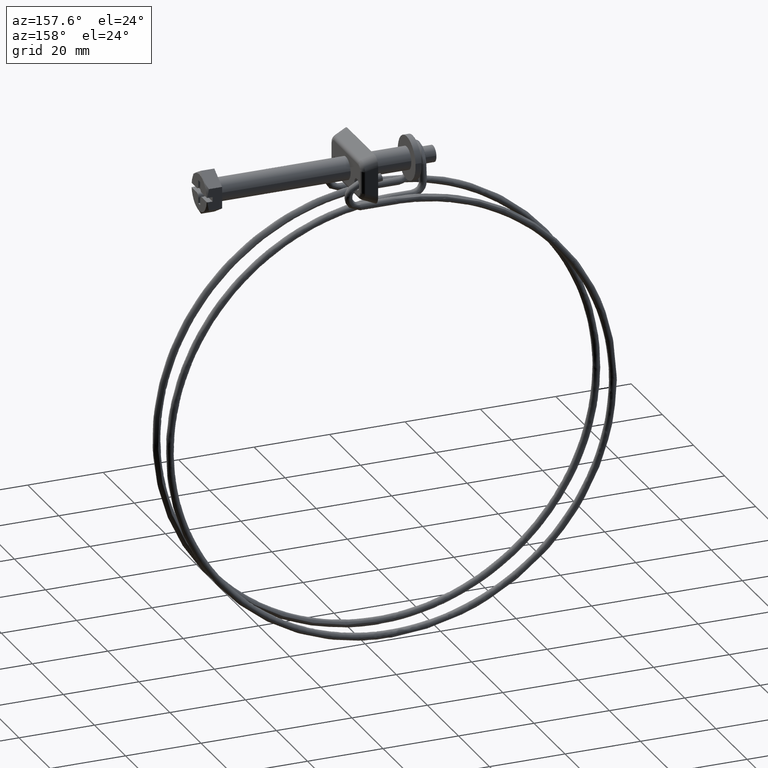
[diagram: clean part render]
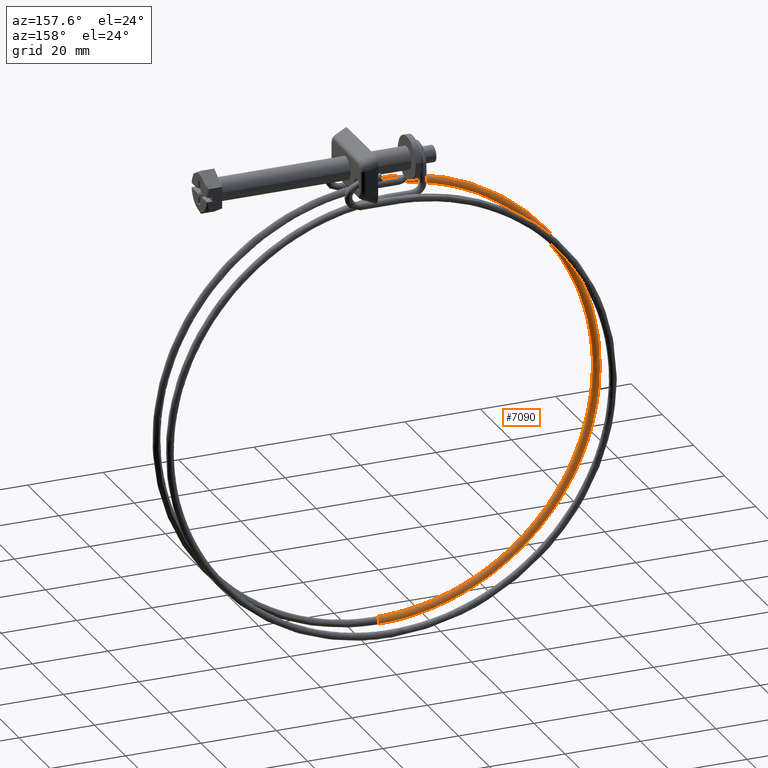
[diagram: same view with one face highlighted and labeled with its STEP entity id]
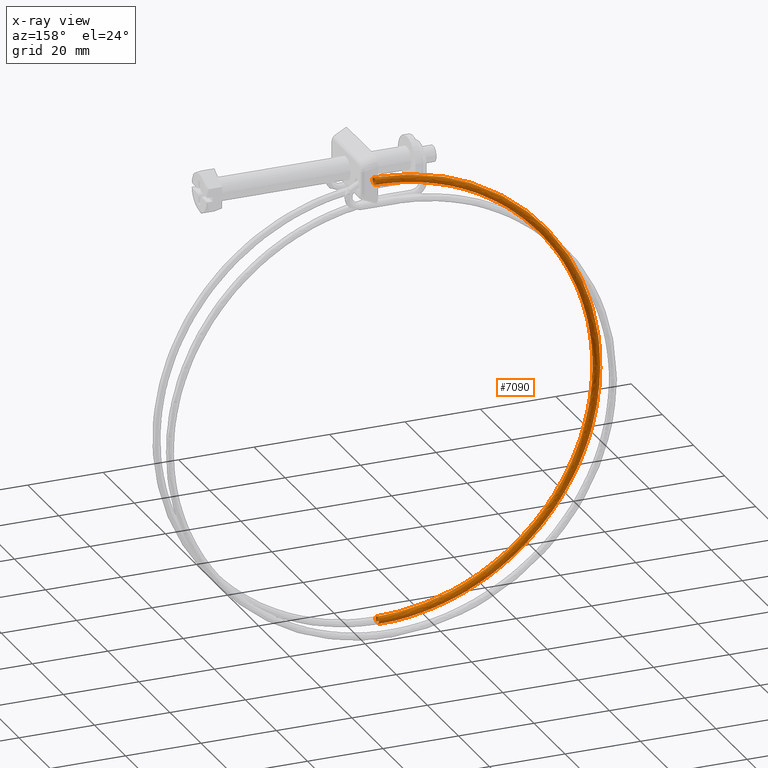
[diagram: x-ray of the same camera — body ghosted, the highlighted face saturated]
A machine part, auxiliary view. The second image highlights one B-rep face of the part: STEP entity #7090.
The next image is the same camera in x-ray: the body ghosted, the highlighted face saturated — about 0% of this face is hidden behind the body in this view.
In plain terms, the highlighted face is a freeform B-spline surface patch.
Its self-contained STEP definition (entity closure, byte-faithful):
#4573=CARTESIAN_POINT('',(-44.949999998836027,-5.311039393148999,-7.894169453608496));
#4574=VERTEX_POINT('',#4573);
#4575=CARTESIAN_POINT('',(-44.949999999999960,-5.974420661129821,-6.908508554029151));
#4576=VERTEX_POINT('',#4575);
#4577=CARTESIAN_POINT('',(-44.949999998836027,-5.311039393148999,-7.894169453608496));
#4578=CARTESIAN_POINT('',(-44.949999998856612,-5.309808026557454,-7.868018574566658));
#4579=CARTESIAN_POINT('',(-44.949999998877793,-5.309627232391755,-7.841813824010115));
#4580=CARTESIAN_POINT('',(-44.949999999117153,-5.319498217223199,-7.553898283380754));
#4581=CARTESIAN_POINT('',(-44.949999999389348,-5.436120801330201,-7.297458111933486));
#4582=CARTESIAN_POINT('',(-44.949999999769346,-5.727024221261706,-7.025703904461276));
#4583=CARTESIAN_POINT('',(-44.949999999892547,-5.846170316292789,-6.954327632220243));
#4584=CARTESIAN_POINT('',(-44.949999999999960,-5.974420661129821,-6.908508554029151));
#4585=B_SPLINE_CURVE_WITH_KNOTS('',3,(#4577,#4578,#4579,#4580,#4581,#4582,#4583,#4584),.UNSPECIFIED.,.F.,.U.,(4,2,2,4),(0.737494791658561,0.750000000000000,0.875000000000000,0.940036109681440),.UNSPECIFIED.);
#4586=EDGE_CURVE('',#4574,#4576,#4585,.T.);
#4642=CARTESIAN_POINT('',(-44.949999999999967,-6.344350741984328,-6.850591095391717));
#4643=VERTEX_POINT('',#4642);
#4644=CARTESIAN_POINT('',(-44.949999999999960,-5.974420661129821,-6.908508554029151));
#4645=CARTESIAN_POINT('',(-44.949999999999967,-6.092731554548301,-6.866454072036305));
#4646=CARTESIAN_POINT('',(-44.949999999999967,-6.218782661652304,-6.846125678241154));
#4647=CARTESIAN_POINT('',(-44.949999999999967,-6.344350741984328,-6.850591095391717));
#4648=B_SPLINE_CURVE_WITH_KNOTS('',3,(#4644,#4645,#4646,#4647),.UNSPECIFIED.,.F.,.U.,(4,4),(0.940036109681440,1.0),.UNSPECIFIED.);
#4649=EDGE_CURVE('',#4576,#4643,#4648,.T.);
#4651=CARTESIAN_POINT('',(-44.949999999999967,-7.062033864607670,-7.190907952424980));
#4652=VERTEX_POINT('',#4651);
#4662=CARTESIAN_POINT('',(-44.949999999999953,-6.275653068925592,-8.849410904608254));
#4663=VERTEX_POINT('',#4662);
#4664=CARTESIAN_POINT('',(-44.949999999999967,-7.062033864607670,-7.190907952424980));
#4665=CARTESIAN_POINT('',(-44.949999999999960,-7.227361706803780,-7.380065930074665));
#4666=CARTESIAN_POINT('',(-44.949999999999960,-7.318044595389659,-7.633171280532898));
#4667=CARTESIAN_POINT('',(-44.949999999999960,-7.300419305688212,-8.145994737716217));
#4668=CARTESIAN_POINT('',(-44.949999999999953,-7.183772675668191,-8.402326592900588));
#4669=CARTESIAN_POINT('',(-44.949999999999960,-6.801033586237160,-8.759631039037972));
#4670=CARTESIAN_POINT('',(-44.949999999999953,-6.537297970112442,-8.858403408983254));
#4671=CARTESIAN_POINT('',(-44.949999999999953,-6.275653068925595,-8.849410904608254));
#4672=B_SPLINE_CURVE_WITH_KNOTS('',3,(#4664,#4665,#4666,#4667,#4668,#4669,#4670,#4671),.UNSPECIFIED.,.F.,.U.,(4,2,2,4),(0.130000262351234,0.249999999999999,0.374999999999999,0.500000000000000),.UNSPECIFIED.);
#4673=EDGE_CURVE('',#4652,#4663,#4672,.T.);
#4675=CARTESIAN_POINT('',(-44.949999999999953,-6.275653068925592,-8.849410904608254));
#4676=CARTESIAN_POINT('',(-44.949999999835129,-6.013999465536163,-8.840418809517198));
#4677=CARTESIAN_POINT('',(-44.949999999608593,-5.757655649785072,-8.723772742029238));
#4678=CARTESIAN_POINT('',(-44.949999999182452,-5.418201369986546,-8.360179639029891));
#4679=CARTESIAN_POINT('',(-44.949999998984651,-5.322108059632653,-8.129344423212601));
#4680=CARTESIAN_POINT('',(-44.949999998836027,-5.311039393148999,-7.894169453608496));
#4681=B_SPLINE_CURVE_WITH_KNOTS('',3,(#4675,#4676,#4677,#4678,#4679,#4680),.UNSPECIFIED.,.F.,.U.,(4,2,4),(0.500000000000000,0.625000000000000,0.737494791658561),.UNSPECIFIED.);
#4682=EDGE_CURVE('',#4663,#4574,#4681,.T.);
#6080=CARTESIAN_POINT('',(-44.949999999991313,-3.300325003237878,-124.824871093381600));
#6081=VERTEX_POINT('',#6080);
#6082=CARTESIAN_POINT('',(-44.949999999965030,-4.274872093360560,-125.849677996761500));
#6083=VERTEX_POINT('',#6082);
#6084=CARTESIAN_POINT('',(-44.949999999991313,-3.300325003237878,-124.824871093381600));
#6085=CARTESIAN_POINT('',(-44.949999999991213,-3.300105234537513,-124.833244440008100));
#6086=CARTESIAN_POINT('',(-44.949999999991093,-3.299994866466340,-124.841621846642500));
#6087=CARTESIAN_POINT('',(-44.949999999987462,-3.299995836084642,-125.111801283060200));
#6088=CARTESIAN_POINT('',(-44.949999999982573,-3.407770234044966,-125.371989925768600));
#6089=CARTESIAN_POINT('',(-44.949999999973002,-3.772088163064204,-125.736307992313400));
#6090=CARTESIAN_POINT('',(-44.949999999968362,-4.021623570390203,-125.843029356829600));
#6091=CARTESIAN_POINT('',(-44.949999999965030,-4.274872093360560,-125.849677996761500));
#6092=B_SPLINE_CURVE_WITH_KNOTS('',3,(#6084,#6085,#6086,#6087,#6088,#6089,#6090,#6091),.UNSPECIFIED.,.F.,.U.,(4,2,2,4),(0.745999309435994,0.750000000000000,0.875000000000000,0.995999309432632),.UNSPECIFIED.);
#6093=EDGE_CURVE('',#6081,#6083,#6092,.T.);
#6183=CARTESIAN_POINT('',(-44.950000000000003,-4.300002000000007,-123.850001000000010));
#6184=VERTEX_POINT('',#6183);
#6185=CARTESIAN_POINT('',(-44.950000000000003,-4.300002000000007,-123.850001000000010));
#6186=CARTESIAN_POINT('',(-44.949999999998830,-4.038201646737111,-123.850000974656790));
#6187=CARTESIAN_POINT('',(-44.949999999997203,-3.778013028668510,-123.957774035685500));
#6188=CARTESIAN_POINT('',(-44.949999999993999,-3.413694996723188,-124.322089344256700));
#6189=CARTESIAN_POINT('',(-44.949999999992443,-3.306973642412659,-124.571623483095810));
#6190=CARTESIAN_POINT('',(-44.949999999991313,-3.300325003237878,-124.824871093381600));
#6191=B_SPLINE_CURVE_WITH_KNOTS('',3,(#6185,#6186,#6187,#6188,#6189,#6190),.UNSPECIFIED.,.F.,.U.,(4,2,4),(0.500000000000000,0.625000000000000,0.745999309435994),.UNSPECIFIED.);
#6192=EDGE_CURVE('',#6184,#6081,#6191,.T.);
#6194=CARTESIAN_POINT('',(-44.950000000000003,-5.028951109210329,-125.534536542634500));
#6195=VERTEX_POINT('',#6194);
#6196=CARTESIAN_POINT('',(-44.950000000000003,-5.028951109210329,-125.534536542634500));
#6197=CARTESIAN_POINT('',(-44.950000000000003,-5.200678748661203,-125.351169005261200));
#6198=CARTESIAN_POINT('',(-44.950000000000003,-5.300002000000000,-125.101327862819900));
#6199=CARTESIAN_POINT('',(-44.950000000000003,-5.300002000000000,-124.588201612200810));
#6200=CARTESIAN_POINT('',(-44.950000000000003,-5.192228903609820,-124.328014341236600));
#6201=CARTESIAN_POINT('',(-44.950000000000003,-4.821988658763289,-123.957774096390000));
#6202=CARTESIAN_POINT('',(-44.950000000000003,-4.561801387799160,-123.850001000000010));
#6203=CARTESIAN_POINT('',(-44.950000000000003,-4.300002000000007,-123.850001000000010));
#6204=B_SPLINE_CURVE_WITH_KNOTS('',3,(#6196,#6197,#6198,#6199,#6200,#6201,#6202,#6203),.UNSPECIFIED.,.F.,.U.,(4,2,2,4),(0.130000262351240,0.250000000000000,0.375000000000000,0.500000000000000),.UNSPECIFIED.);
#6205=EDGE_CURVE('',#6195,#6184,#6204,.T.);
#6207=CARTESIAN_POINT('',(-44.950000000000003,-4.300002000000007,-125.850001000000010));
#6208=VERTEX_POINT('',#6207);
#6218=CARTESIAN_POINT('',(-44.949999999965030,-4.274872093360560,-125.849677996761500));
#6219=CARTESIAN_POINT('',(-44.949999999976683,-4.283245472034839,-125.849895397774500));
#6220=CARTESIAN_POINT('',(-44.949999999988343,-4.291622910327826,-125.850003397795700));
#6221=CARTESIAN_POINT('',(-44.950000000000003,-4.300002000000007,-125.850001000000010));
#6222=B_SPLINE_CURVE_WITH_KNOTS('',3,(#6218,#6219,#6220,#6221),.UNSPECIFIED.,.F.,.U.,(4,4),(0.995999309432632,1.0),.UNSPECIFIED.);
#6223=EDGE_CURVE('',#6083,#6208,#6222,.T.);
#6749=CARTESIAN_POINT('',(-44.950000000000003,-7.062032780256199,-7.190906711776395));
#6750=CARTESIAN_POINT('',(-44.950000000000003,-7.227361310289744,-7.380064823363663));
#6751=CARTESIAN_POINT('',(-44.950000000000003,-7.318044614263363,-7.633170731389734));
#6752=CARTESIAN_POINT('',(-44.950000000000003,-7.300419305688460,-8.145994737715959));
#6753=CARTESIAN_POINT('',(-44.950000000000003,-7.183772675668480,-8.402326592900369));
#6754=CARTESIAN_POINT('',(-44.950000000000003,-6.801033586237520,-8.759631039037821));
#6755=CARTESIAN_POINT('',(-44.950000000000003,-6.537297970112820,-8.858403408983149));
#6756=CARTESIAN_POINT('',(-44.950000000000003,-6.014008167739120,-8.840418400233249));
#6757=CARTESIAN_POINT('',(-44.950000000000003,-5.757676312554731,-8.723771770213270));
#6758=CARTESIAN_POINT('',(-44.950000000000003,-5.400371866417270,-8.341032680782321));
#6759=CARTESIAN_POINT('',(-44.950000000000003,-5.301599496471940,-8.077297064657611));
#6760=CARTESIAN_POINT('',(-44.950000000000003,-5.319584505221840,-7.554007262283900));
#6761=CARTESIAN_POINT('',(-44.950000000000003,-5.436231135241810,-7.297675407099520));
#6762=CARTESIAN_POINT('',(-44.950000000000003,-5.818970224672780,-6.940370960962061));
#6763=CARTESIAN_POINT('',(-44.950000000000003,-6.082705840797480,-6.841598591016740));
#6764=CARTESIAN_POINT('',(-44.950000000000003,-6.344350741984330,-6.850591095391685));
#6765=CARTESIAN_POINT('',(-52.696956091880402,-7.062330169033658,-7.190940007512155));
#6766=CARTESIAN_POINT('',(-52.672562831501352,-7.227658235243203,-7.380097962170632));
#6767=CARTESIAN_POINT('',(-52.639629453682069,-7.318340909772926,-7.633203658689141));
#6768=CARTESIAN_POINT('',(-52.572449441247102,-7.300714308843801,-8.146027234435520));
#6769=CARTESIAN_POINT('',(-52.538627389470903,-7.184067023800960,-8.402358873250710));
#6770=CARTESIAN_POINT('',(-52.490987228668203,-6.801327006729120,-8.759663015311480));
#6771=CARTESIAN_POINT('',(-52.477462479822996,-6.537591126188651,-8.858435299012928));
#6772=CARTESIAN_POINT('',(-52.478640151355101,-6.014301346858290,-8.840450297784461));
#6773=CARTESIAN_POINT('',(-52.493335319917897,-5.757969778904711,-8.723803761471109));
#6774=CARTESIAN_POINT('',(-52.542640959820503,-5.400666292433380,-8.341064986797329));
#6775=CARTESIAN_POINT('',(-52.576947815352199,-5.301894586539370,-8.077329590131290));
#6776=CARTESIAN_POINT('',(-52.645498848449101,-5.319880913231250,-7.554040227210640));
#6777=CARTESIAN_POINT('',(-52.679320900224504,-5.436528189145069,-7.297708589404430));
#6778=CARTESIAN_POINT('',(-52.726961061105200,-5.819268183504330,-6.940404449739440));
#6779=CARTESIAN_POINT('',(-52.740485809909899,-6.083004055505990,-6.841632166979840));
#6780=CARTESIAN_POINT('',(-52.739896974123852,-6.344648945564675,-6.850624667631300));
#6781=CARTESIAN_POINT('',(-60.438294215747902,-7.035574309432156,-8.731031170841765));
#6782=CARTESIAN_POINT('',(-60.389525535378432,-7.200986153173729,-8.915339678552581));
#6783=CARTESIAN_POINT('',(-60.323682865817467,-7.291781939119458,-9.161898128899804));
#6784=CARTESIAN_POINT('',(-60.189371973891497,-7.274386079814270,-9.661366132621289));
#6785=CARTESIAN_POINT('',(-60.121752606444701,-7.157854966970340,-9.910973853661108));
#6786=CARTESIAN_POINT('',(-60.026507127085601,-6.775278589627910,-10.258806998890879));
#6787=CARTESIAN_POINT('',(-59.999467520848697,-6.511589166470620,-10.354890524753401));
#6788=CARTESIAN_POINT('',(-60.001822002781402,-5.988295341833500,-10.337139647898100));
#6789=CARTESIAN_POINT('',(-60.031201592325800,-5.731913296181559,-10.223414552053541));
#6790=CARTESIAN_POINT('',(-60.129776811903703,-5.374440449609250,-9.850477876120070));
#6791=CARTESIAN_POINT('',(-60.198365432125797,-5.275550906674290,-9.593562777528410));
#6792=CARTESIAN_POINT('',(-60.335417362662497,-5.293301783509680,-9.083901549347420));
#6793=CARTESIAN_POINT('',(-60.403036730109299,-5.409832896353610,-8.834293828201380));
#6794=CARTESIAN_POINT('',(-60.498282209362202,-5.792409273696040,-8.486460683077830));
#6795=CARTESIAN_POINT('',(-60.525321815652198,-6.056098696853330,-8.390377157215319));
#6796=CARTESIAN_POINT('',(-60.524144574712437,-6.317745609175210,-8.399252595642979));
#6797=CARTESIAN_POINT('',(-74.750322938896232,-6.933729380704432,-14.659318119488480));
#6798=CARTESIAN_POINT('',(-74.656492152731573,-7.099461888065193,-14.824961132657981));
#6799=CARTESIAN_POINT('',(-74.529811065883678,-7.190690602433701,-15.046319270703030));
#6800=CARTESIAN_POINT('',(-74.271397336560199,-7.174177863545441,-15.494381757625700));
#6801=CARTESIAN_POINT('',(-74.141297888526807,-7.058091361277310,-15.718109161263850));
#6802=CARTESIAN_POINT('',(-73.958045888842292,-6.676141241613120,-16.029488501332398));
#6803=CARTESIAN_POINT('',(-73.906021772403193,-6.412629609150770,-16.115223015882052));
#6804=CARTESIAN_POINT('',(-73.910551787958397,-5.889320303329010,-16.098373282335899));
#6805=CARTESIAN_POINT('',(-73.967078024994109,-5.632745081138300,-15.995892792137500));
#6806=CARTESIAN_POINT('',(-74.156736434177404,-5.274624083200150,-15.660684330276499));
#6807=CARTESIAN_POINT('',(-74.288700721667595,-5.175283556653830,-15.430020516413199));
#6808=CARTESIAN_POINT('',(-74.552388200569098,-5.192133290219920,-14.972813896998041));
#6809=CARTESIAN_POINT('',(-74.682487648602404,-5.308219792488040,-14.749086493466240));
#6810=CARTESIAN_POINT('',(-74.865739648393301,-5.690169912152229,-14.437707153291360));
#6811=CARTESIAN_POINT('',(-74.917763764779195,-5.953681544614581,-14.351972638741699));
#6812=CARTESIAN_POINT('',(-74.915498756975055,-6.215336197522141,-14.360397505514790));
#6813=CARTESIAN_POINT('',(-81.314116818697727,-6.858383086924270,-19.045147197230300));
#6814=CARTESIAN_POINT('',(-81.199621158055407,-7.024352815471559,-19.196981812868071));
#6815=CARTESIAN_POINT('',(-81.045040392525877,-7.115901802532134,-19.399697212411610));
#6816=CARTESIAN_POINT('',(-80.729714774282897,-7.100042380257871,-19.809730821608898));
#6817=CARTESIAN_POINT('',(-80.570962803149001,-6.984284792903880,-20.014312431306550));
#6818=CARTESIAN_POINT('',(-80.347352199097401,-6.602797967413420,-20.298723901320500));
#6819=CARTESIAN_POINT('',(-80.283870522765099,-6.339417861324460,-20.376802403375152));
#6820=CARTESIAN_POINT('',(-80.289398208908693,-5.816097102808230,-20.360619319355351));
#6821=CARTESIAN_POINT('',(-80.358373532727796,-5.559378972062450,-20.266457386144751));
#6822=CARTESIAN_POINT('',(-80.589801465401905,-5.200778483394591,-19.959159579274949));
#6823=CARTESIAN_POINT('',(-80.750828979836399,-5.101104327276320,-19.747915994240749));
#6824=CARTESIAN_POINT('',(-81.072589814884495,-5.117287411239610,-19.329514352202750));
#6825=CARTESIAN_POINT('',(-81.231341786124588,-5.233044998583630,-19.124932742452000));
#6826=CARTESIAN_POINT('',(-81.454952390176189,-5.614531824080740,-18.840521272544251));
#6827=CARTESIAN_POINT('',(-81.518434066295896,-5.877911930169701,-18.762442770542801));
#6828=CARTESIAN_POINT('',(-81.515670223224149,-6.139572309427814,-18.770534312552680));
#6829=CARTESIAN_POINT('',(-92.267965781868142,-6.670200284060970,-29.999071636098851));
#6830=CARTESIAN_POINT('',(-92.118986740726825,-6.836762423478309,-30.116422633741671));
#6831=CARTESIAN_POINT('',(-91.917849911100035,-6.929111225355715,-30.272581648038020));
#6832=CARTESIAN_POINT('',(-91.507555686704691,-6.914883326243969,-30.587645997001449));
#6833=CARTESIAN_POINT('',(-91.300991382737493,-6.799947135910660,-30.744414944508101));
#6834=CARTESIAN_POINT('',(-91.010034562226011,-6.419617291841069,-30.961479733943150));
#6835=CARTESIAN_POINT('',(-90.927433709217411,-6.156565645668071,-31.020438927217150));
#6836=CARTESIAN_POINT('',(-90.934626203356800,-5.633216286403620,-31.005920662883799));
#6837=CARTESIAN_POINT('',(-91.024375260419092,-5.376141271123990,-30.932532606180100));
#6838=CARTESIAN_POINT('',(-91.325503803780009,-5.016343353455840,-30.694935890376751));
#6839=CARTESIAN_POINT('',(-91.535028990808186,-4.915836026472600,-30.532190311970101));
#6840=CARTESIAN_POINT('',(-91.953696566615506,-4.930354290862380,-30.210696078333999));
#6841=CARTESIAN_POINT('',(-92.160260870476407,-5.045290481205639,-30.053927130880549));
#6842=CARTESIAN_POINT('',(-92.451217690987988,-5.425620325268591,-29.836862341339099));
#6843=CARTESIAN_POINT('',(-92.533818544209097,-5.688671971441590,-29.777903148012051));
#6844=CARTESIAN_POINT('',(-92.530222297139389,-5.950346651073815,-29.785162280178699));
#6845=CARTESIAN_POINT('',(-96.653713055793418,-6.557437811876841,-36.562857386684023));
#6846=CARTESIAN_POINT('',(-96.490928957960605,-6.724354905988104,-36.659546842368911));
#6847=CARTESIAN_POINT('',(-96.271153900181844,-6.817182932728021,-36.787810677514493));
#6848=CARTESIAN_POINT('',(-95.822839998831995,-6.803932593014290,-37.045972315519350));
#6849=CARTESIAN_POINT('',(-95.597134533113589,-6.689488558939150,-37.174093360692048));
#6850=CARTESIAN_POINT('',(-95.279216367113392,-6.309851943177200,-37.350806054368100));
#6851=CARTESIAN_POINT('',(-95.188961353727493,-6.046997100262010,-37.398309535732587));
#6852=CARTESIAN_POINT('',(-95.196820336177893,-5.523630604284500,-37.384788780856198));
#6853=CARTESIAN_POINT('',(-95.294885937840604,-5.266341754570360,-37.323847803271804));
#6854=CARTESIAN_POINT('',(-95.623918383445698,-4.905826373644450,-37.128013874786348));
#6855=CARTESIAN_POINT('',(-95.852859100748901,-4.804819835842371,-36.994326836449098));
#6856=CARTESIAN_POINT('',(-96.310322265391605,-4.818340590658950,-36.730896593533849));
#6857=CARTESIAN_POINT('',(-96.536027731056791,-4.932784624730760,-36.602775548467392));
#6858=CARTESIAN_POINT('',(-96.853945897110194,-5.312421240492711,-36.426062854844552));
#6859=CARTESIAN_POINT('',(-96.944200910496207,-5.575276083407900,-36.378559373426903));
#6860=CARTESIAN_POINT('',(-96.940271419217794,-5.836959331396655,-36.385319750838512));
#6861=CARTESIAN_POINT('',(-102.581852967478890,-6.311567004548686,-50.874740323793148));
#6862=CARTESIAN_POINT('',(-102.400409612872000,-6.479257995120872,-50.926382074334668));
#6863=CARTESIAN_POINT('',(-102.155442664151590,-6.573130860665259,-50.993826934459747));
#6864=CARTESIAN_POINT('',(-101.655740425127410,-6.562011862687809,-51.127925394907997));
#6865=CARTESIAN_POINT('',(-101.404163290803000,-6.448640861333991,-51.193586326291403));
#6866=CARTESIAN_POINT('',(-101.049803501968400,-6.070515669283920,-51.282320624115997));
#6867=CARTESIAN_POINT('',(-100.949202935746400,-5.808089910266549,-51.304847579527497));
#6868=CARTESIAN_POINT('',(-100.957962760429000,-5.284686051701400,-51.293501663290400));
#6869=CARTESIAN_POINT('',(-101.067269209673000,-5.026930985539971,-51.259698657786302));
#6870=CARTESIAN_POINT('',(-101.434017261340600,-4.664851342193590,-51.154918811231397));
#6871=CARTESIAN_POINT('',(-101.689200490494600,-4.562756390879249,-51.084587186955503));
#6872=CARTESIAN_POINT('',(-102.199100734397010,-4.574102307176120,-50.947752023286000));
#6873=CARTESIAN_POINT('',(-102.450677868774410,-4.687473308533270,-50.882091091796298));
#6874=CARTESIAN_POINT('',(-102.805037657556000,-5.065598500583340,-50.793356793918612));
#6875=CARTESIAN_POINT('',(-102.905638223778000,-5.328024259600710,-50.770829838560203));
#6876=CARTESIAN_POINT('',(-102.901258311489800,-5.589726188883286,-50.776502796705302));
#6877=CARTESIAN_POINT('',(-104.121914647457900,-6.178555379812631,-58.617208098369453));
#6878=CARTESIAN_POINT('',(-103.935624283562800,-6.346665008798624,-58.644481344106993));
#6879=CARTESIAN_POINT('',(-103.684113380251200,-6.441103078698341,-58.679026248863373));
#6880=CARTESIAN_POINT('',(-103.171062284241400,-6.431137027620930,-58.746012874710097));
#6881=CARTESIAN_POINT('',(-102.912764613289600,-6.318346482086019,-58.777886078772603));
#6882=CARTESIAN_POINT('',(-102.548938590823200,-5.941038892970810,-58.819028563493312));
#6883=CARTESIAN_POINT('',(-102.445650619092400,-5.678845246410091,-58.828044495762803));
#6884=CARTESIAN_POINT('',(-102.454644450370000,-5.155421176571959,-58.817875055901197));
#6885=CARTESIAN_POINT('',(-102.566870870869590,-4.897413911154400,-58.798752305434803));
#6886=CARTESIAN_POINT('',(-102.943416091506410,-4.534488081835391,-58.743228060917907));
#6887=CARTESIAN_POINT('',(-103.205416189164790,-4.431804354470820,-58.707168475718802));
#6888=CARTESIAN_POINT('',(-103.728937715705200,-4.441973794339081,-58.638814775928502));
#6889=CARTESIAN_POINT('',(-103.987235386657010,-4.554764339877310,-58.606941571865903));
#6890=CARTESIAN_POINT('',(-104.351061409123400,-4.932071928992521,-58.565799087092003));
#6891=CARTESIAN_POINT('',(-104.454349380854200,-5.194265575559880,-58.556783154875703));
#6892=CARTESIAN_POINT('',(-104.449852465215600,-5.455977610478949,-58.561867874806502));
#6893=CARTESIAN_POINT('',(-104.121914647564100,-5.912427460692798,-74.108236358711451));
#6894=CARTESIAN_POINT('',(-103.935624283668800,-6.081374693223272,-74.086753576955658));
#6895=CARTESIAN_POINT('',(-103.684113380355300,-6.176943612930379,-74.055472894813263));
#6896=CARTESIAN_POINT('',(-103.171062284241400,-6.169284355432880,-73.988183475206498));
#6897=CARTESIAN_POINT('',(-102.912764613289600,-6.057655174557630,-73.952454855364294));
#6898=CARTESIAN_POINT('',(-102.548938590823200,-5.681983429395340,-73.898376571934406));
#6899=CARTESIAN_POINT('',(-102.445650619092400,-5.420254188867230,-73.880359913220104));
#6900=CARTESIAN_POINT('',(-102.454644450370000,-4.896789680733370,-73.872544344331800));
#6901=CARTESIAN_POINT('',(-102.566870870869590,-4.638277820002400,-73.882793561168413));
#6902=CARTESIAN_POINT('',(-102.943416091506410,-4.273658958337426,-73.925818961100902));
#6903=CARTESIAN_POINT('',(-103.205416189164790,-4.169797219366475,-73.958330201139404));
#6904=CARTESIAN_POINT('',(-103.728937715811600,-4.177612788248120,-74.026992874154402));
#6905=CARTESIAN_POINT('',(-103.987235386763200,-4.289241969120040,-74.062721493996705));
#6906=CARTESIAN_POINT('',(-104.351061409229600,-4.664913714282330,-74.116799777479599));
#6907=CARTESIAN_POINT('',(-104.454349380960590,-4.926642954803800,-74.134816436140795));
#6908=CARTESIAN_POINT('',(-104.449852465321900,-5.188375208870730,-74.138724220584962));
#6909=CARTESIAN_POINT('',(-102.581852967577500,-5.779415835946952,-81.850704133228490));
#6910=CARTESIAN_POINT('',(-102.400409612955000,-5.948781706890007,-81.804852846644934));
#6911=CARTESIAN_POINT('',(-102.155442664332990,-6.044915830955371,-81.740672209134502));
#6912=CARTESIAN_POINT('',(-101.655740425309010,-6.038409520351420,-81.606270954977703));
#6913=CARTESIAN_POINT('',(-101.404163290878400,-5.927360795295090,-81.536754607760997));
#6914=CARTESIAN_POINT('',(-101.049803502097210,-5.552506653074310,-81.435084511226904));
#6915=CARTESIAN_POINT('',(-100.949202935928400,-5.291009525002860,-81.403556829370302));
#6916=CARTESIAN_POINT('',(-100.957962760557610,-4.767524805602650,-81.396917736857603));
#6917=CARTESIAN_POINT('',(-101.067269209854800,-4.508760745608900,-81.421847208785195));
#6918=CARTESIAN_POINT('',(-101.434017261416000,-4.143295697977935,-81.514128210702992));
#6919=CARTESIAN_POINT('',(-101.689200490729210,-4.038845182960070,-81.580911489765498));
#6920=CARTESIAN_POINT('',(-102.199100734631200,-4.045484275413085,-81.718055626713408));
#6921=CARTESIAN_POINT('',(-102.450677868849000,-4.156533000462769,-81.787571973983191));
#6922=CARTESIAN_POINT('',(-102.805037657736610,-4.531387142686870,-81.889242070517398));
#6923=CARTESIAN_POINT('',(-102.905638224011800,-4.792884270764970,-81.920769752373900));
#6924=CARTESIAN_POINT('',(-102.901258311644000,-5.054626630460095,-81.924089298603704));
#6925=CARTESIAN_POINT('',(-96.653713055694993,-5.533545028638387,-96.162587070456098));
#6926=CARTESIAN_POINT('',(-96.490928957877742,-5.703684796044815,-96.071688078776603));
#6927=CARTESIAN_POINT('',(-96.271153900000954,-5.800863758908784,-95.946688466244410));
#6928=CARTESIAN_POINT('',(-95.822839998650792,-5.796488790054110,-95.688224034428004));
#6929=CARTESIAN_POINT('',(-95.597134533038599,-5.686513097719080,-95.556247573528992));
#6930=CARTESIAN_POINT('',(-95.279216366984997,-5.313170379196881,-95.366599081144386));
#6931=CARTESIAN_POINT('',(-95.188961353545807,-5.052102335023239,-95.310094873335188));
#6932=CARTESIAN_POINT('',(-95.196820336049399,-4.528580253022110,-95.305630619461596));
#6933=CARTESIAN_POINT('',(-95.294885937659004,-4.269349976594359,-95.357698063363003));
#6934=CARTESIAN_POINT('',(-95.623918383370693,-3.902320666529660,-95.541033147316710));
#6935=CARTESIAN_POINT('',(-95.852859100514607,-3.796781737992895,-95.671171840546208));
#6936=CARTESIAN_POINT('',(-96.310322265157509,-3.801245991926235,-95.934911056632203));
#6937=CARTESIAN_POINT('',(-96.536027730982298,-3.911221684267910,-96.066887517478008));
#6938=CARTESIAN_POINT('',(-96.853945896929602,-4.284564402786785,-96.256536009862600));
#6939=CARTESIAN_POINT('',(-96.944200910262495,-4.545632446953790,-96.313040217671912));
#6940=CARTESIAN_POINT('',(-96.940271419063848,-4.807393487959335,-96.315272344635261));
#6941=CARTESIAN_POINT('',(-92.267965781762086,-5.420782556444455,-102.726372820988100));
#6942=CARTESIAN_POINT('',(-92.118986740624635,-5.591277278543582,-102.614812287370100));
#6943=CARTESIAN_POINT('',(-91.917849911045863,-5.688935466272864,-102.461917495639900));
#6944=CARTESIAN_POINT('',(-91.507555686598394,-5.685538056803201,-102.146550352968400));
#6945=CARTESIAN_POINT('',(-91.300991382684401,-5.576054520729660,-101.985925989788200));
#6946=CARTESIAN_POINT('',(-91.010034562119699,-5.203405030521760,-101.755925401537790));
#6947=CARTESIAN_POINT('',(-90.927433709164305,-4.942533789602611,-101.687965481712790));
#6948=CARTESIAN_POINT('',(-90.934626203250488,-4.418994570895065,-101.684498737349200));
#6949=CARTESIAN_POINT('',(-91.024375260312894,-4.159550460032805,-101.749013260529400));
#6950=CARTESIAN_POINT('',(-91.325503803673797,-3.791803686710325,-101.974111131854600));
#6951=CARTESIAN_POINT('',(-91.535028990755094,-3.685765547364690,-102.133308364994410));
#6952=CARTESIAN_POINT('',(-91.953696566509208,-3.689232291721495,-102.455111571801990));
#6953=CARTESIAN_POINT('',(-92.160260870423315,-3.798715827791710,-102.615735935088400));
#6954=CARTESIAN_POINT('',(-92.451217690881705,-4.171365318002930,-102.845736523339000));
#6955=CARTESIAN_POINT('',(-92.533818544049694,-4.432236558915445,-102.913696443057600));
#6956=CARTESIAN_POINT('',(-92.530222297006603,-4.694006168269218,-102.915429815239410));
#6957=CARTESIAN_POINT('',(-81.314116818803768,-5.232599753581152,-113.680297259844810));
#6958=CARTESIAN_POINT('',(-81.199621158157598,-5.403686886550341,-113.534253108145710));
#6959=CARTESIAN_POINT('',(-81.045040392580034,-5.502144889096711,-113.334801931264100));
#6960=CARTESIAN_POINT('',(-80.729714774389194,-5.500379002802580,-112.924465528254600));
#6961=CARTESIAN_POINT('',(-80.570962803202207,-5.391716863743080,-112.716028502670990));
#6962=CARTESIAN_POINT('',(-80.347352199203712,-5.020224354956050,-112.418681234054200));
#6963=CARTESIAN_POINT('',(-80.283870522818304,-4.759681573959510,-112.331602005661000));
#6964=CARTESIAN_POINT('',(-80.289398209015005,-4.236113754503736,-112.329800080877600));
#6965=CARTESIAN_POINT('',(-80.358373532834094,-3.976312759094340,-112.415088480352200));
#6966=CARTESIAN_POINT('',(-80.589801465508188,-3.607368556784866,-112.709887442531400));
#6967=CARTESIAN_POINT('',(-80.750828979889505,-3.500497246560965,-112.917582682511200));
#6968=CARTESIAN_POINT('',(-81.072589814990792,-3.502299171350905,-113.336293297827000));
#6969=CARTESIAN_POINT('',(-81.231341786177708,-3.610961310413720,-113.544730323304410));
#6970=CARTESIAN_POINT('',(-81.454952390282500,-3.982453819197425,-113.842077591921200));
#6971=CARTESIAN_POINT('',(-81.518434066455399,-4.242996600200620,-113.929156820420600));
#6972=CARTESIAN_POINT('',(-81.515670223357034,-4.504780509928506,-113.930057782812300));
#6973=CARTESIAN_POINT('',(-74.750322938993563,-5.157253459818755,-118.066126337709210));
#6974=CARTESIAN_POINT('',(-74.656492152844706,-5.328577813972267,-117.906273788486000));
#6975=CARTESIAN_POINT('',(-74.529811065900034,-5.427356089201525,-117.688179873200890));
#6976=CARTESIAN_POINT('',(-74.271397336629008,-5.426243519521390,-117.239814592466000));
#6977=CARTESIAN_POINT('',(-74.141297888542610,-5.317910295376040,-117.012231773048000));
#6978=CARTESIAN_POINT('',(-73.958045888858294,-4.946881080769369,-116.687916634270200));
#6979=CARTESIAN_POINT('',(-73.906021772366202,-4.686469826136250,-116.593181393222590));
#6980=CARTESIAN_POINT('',(-73.910551788027689,-4.162890553982695,-116.592046118072010));
#6981=CARTESIAN_POINT('',(-73.967078025010110,-3.902946650031510,-116.685653074746990));
#6982=CARTESIAN_POINT('',(-74.156736434246312,-3.533522956984025,-117.008362692023600));
#6983=CARTESIAN_POINT('',(-74.288700721736404,-3.426318017193160,-117.235478160620000));
#6984=CARTESIAN_POINT('',(-74.552388200531297,-3.427453292378635,-117.692993753206810));
#6985=CARTESIAN_POINT('',(-74.682487648670701,-3.535786516522325,-117.920576572678000));
#6986=CARTESIAN_POINT('',(-74.865739648354989,-3.906815731132310,-118.244891711455590));
#6987=CARTESIAN_POINT('',(-74.917763764794003,-4.167226985765430,-118.339626952556400));
#6988=CARTESIAN_POINT('',(-74.915498756963288,-4.429016621842205,-118.340194590131700));
#6989=CARTESIAN_POINT('',(-60.438294215651020,-5.055408531055520,-123.994413286122490));
#6990=CARTESIAN_POINT('',(-60.389525535265697,-5.227053548832613,-123.815895242428700));
#6991=CARTESIAN_POINT('',(-60.323682865801501,-5.326264752502750,-123.572601014549600));
#6992=CARTESIAN_POINT('',(-60.189371973823192,-5.326035303226520,-123.072830217120200));
#6993=CARTESIAN_POINT('',(-60.121752606429297,-5.218146689663610,-122.819367080300790));
#6994=CARTESIAN_POINT('',(-60.026507127069912,-4.847743732721900,-122.458598136362000));
#6995=CARTESIAN_POINT('',(-59.999467520886100,-4.587510268797000,-122.353513884107800));
#6996=CARTESIAN_POINT('',(-60.001822002712608,-4.063915515465445,-122.353279752160010));
#6997=CARTESIAN_POINT('',(-60.031201592310197,-3.803778434962215,-122.458131314268600));
#6998=CARTESIAN_POINT('',(-60.129776811835200,-3.433706590552205,-122.818569145617400));
#6999=CARTESIAN_POINT('',(-60.198365432057507,-3.326050667153305,-123.071935899154790));
#7000=CARTESIAN_POINT('',(-60.335417362700802,-3.326284799066160,-123.581906100613390));
#7001=CARTESIAN_POINT('',(-60.403036730041499,-3.434173412630735,-123.835369237379600));
#7002=CARTESIAN_POINT('',(-60.498282209400898,-3.804576369569120,-124.196138181318400));
#7003=CARTESIAN_POINT('',(-60.525321815637902,-4.064809833494020,-124.301222433519400));
#7004=CARTESIAN_POINT('',(-60.524144574724637,-4.326607210159795,-124.301339499493300));
#7005=CARTESIAN_POINT('',(-52.696956129497110,-5.028950546026555,-125.534537752378000));
#7006=CARTESIAN_POINT('',(-52.672562868993140,-5.200678875703132,-125.351170106480500));
#7007=CARTESIAN_POINT('',(-52.639629490915311,-5.300002558914251,-125.101328421853690));
#7008=CARTESIAN_POINT('',(-52.572449478139802,-5.300002553979491,-124.588201621871600));
#7009=CARTESIAN_POINT('',(-52.538627426131796,-5.192229455113591,-124.328014349845010));
#7010=CARTESIAN_POINT('',(-52.490987265057598,-4.821989206803040,-123.957774101438400));
#7011=CARTESIAN_POINT('',(-52.477462516093901,-4.561801934867030,-123.850001002550800));
#7012=CARTESIAN_POINT('',(-52.478640187707803,-4.038203159397885,-123.850000997501990));
#7013=CARTESIAN_POINT('',(-52.493335356311100,-3.778015889534525,-123.957774091394000));
#7014=CARTESIAN_POINT('',(-52.542640996528100,-3.407775648338765,-124.328014332679200));
#7015=CARTESIAN_POINT('',(-52.576947852252502,-3.300002554475135,-124.588201602633210));
#7016=CARTESIAN_POINT('',(-52.645498885656899,-3.300002559507295,-125.111800378125200));
#7017=CARTESIAN_POINT('',(-52.679320937704901,-3.407775658373200,-125.371987650259000));
#7018=CARTESIAN_POINT('',(-52.726961098779107,-3.778015906687055,-125.742227898613810));
#7019=CARTESIAN_POINT('',(-52.740485847702800,-4.038203178623055,-125.850000997449000));
#7020=CARTESIAN_POINT('',(-52.739897011895899,-4.300002566357618,-125.850000999999910));
#7021=CARTESIAN_POINT('',(-44.950000000000003,-5.028949982883884,-125.534537745304700));
#7022=CARTESIAN_POINT('',(-44.950000000000003,-5.200678314366810,-125.351170097699100));
#7023=CARTESIAN_POINT('',(-44.950000000000003,-5.300002000000000,-125.101328412287000));
#7024=CARTESIAN_POINT('',(-44.950000000000003,-5.300002000000000,-124.588201612200810));
#7025=CARTESIAN_POINT('',(-44.950000000000003,-5.192228903609820,-124.328014341236600));
#7026=CARTESIAN_POINT('',(-44.950000000000003,-4.821988658763289,-123.957774096390000));
#7027=CARTESIAN_POINT('',(-44.950000000000003,-4.561801387799160,-123.850001000000010));
#7028=CARTESIAN_POINT('',(-44.950000000000003,-4.038202612200855,-123.850001000000010));
#7029=CARTESIAN_POINT('',(-44.950000000000003,-3.778015341236725,-123.957774096390000));
#7030=CARTESIAN_POINT('',(-44.950000000000003,-3.407775096390195,-124.328014341236600));
#7031=CARTESIAN_POINT('',(-44.950000000000003,-3.300002000000000,-124.588201612200810));
#7032=CARTESIAN_POINT('',(-44.950000000000003,-3.300002000000000,-125.111800387798990));
#7033=CARTESIAN_POINT('',(-44.950000000000003,-3.407775096390195,-125.371987658763200));
#7034=CARTESIAN_POINT('',(-44.950000000000003,-3.778015341236725,-125.742227903609600));
#7035=CARTESIAN_POINT('',(-44.950000000000003,-4.038202612200855,-125.850001000000010));
#7036=CARTESIAN_POINT('',(-44.950000000000003,-4.300002000000007,-125.850001000000010));
#7037=B_SPLINE_SURFACE_WITH_KNOTS('',3,3,((#6749,#6765,#6781,#6797,#6813,#6829,#6845,#6861,#6877,#6893,#6909,#6925,#6941,#6957,#6973,#6989,#7005,#7021),(#6750,#6766,#6782,#6798,#6814,#6830,#6846,#6862,#6878,#6894,#6910,#6926,#6942,#6958,#6974,#6990,#7006,#7022),(#6751,#6767,#6783,#6799,#6815,#6831,#6847,#6863,#6879,#6895,#6911,#6927,#6943,#6959,#6975,#6991,#7007,#7023),(#6752,#6768,#6784,#6800,#6816,#6832,#6848,#6864,#6880,#6896,#6912,#6928,#6944,#6960,#6976,#6992,#7008,#7024),(#6753,#6769,#6785,#6801,#6817,#6833,#6849,#6865,#6881,#6897,#6913,#6929,#6945,#6961,#6977,#6993,#7009,#7025),(#6754,#6770,#6786,#6802,#6818,#6834,#6850,#6866,#6882,#6898,#6914,#6930,#6946,#6962,#6978,#6994,#7010,#7026),(#6755,#6771,#6787,#6803,#6819,#6835,#6851,#6867,#6883,#6899,#6915,#6931,#6947,#6963,#6979,#6995,#7011,#7027),(#6756,#6772,#6788,#6804,#6820,#6836,#6852,#6868,#6884,#6900,#6916,#6932,#6948,#6964,#6980,#6996,#7012,#7028),(#6757,#6773,#6789,#6805,#6821,#6837,#6853,#6869,#6885,#6901,#6917,#6933,#6949,#6965,#6981,#6997,#7013,#7029),(#6758,#6774,#6790,#6806,#6822,#6838,#6854,#6870,#6886,#6902,#6918,#6934,#6950,#6966,#6982,#6998,#7014,#7030),(#6759,#6775,#6791,#6807,#6823,#6839,#6855,#6871,#6887,#6903,#6919,#6935,#6951,#6967,#6983,#6999,#7015,#7031),(#6760,#6776,#6792,#6808,#6824,#6840,#6856,#6872,#6888,#6904,#6920,#6936,#6952,#6968,#6984,#7000,#7016,#7032),(#6761,#6777,#6793,#6809,#6825,#6841,#6857,#6873,#6889,#6905,#6921,#6937,#6953,#6969,#6985,#7001,#7017,#7033),(#6762,#6778,#6794,#6810,#6826,#6842,#6858,#6874,#6890,#6906,#6922,#6938,#6954,#6970,#6986,#7002,#7018,#7034),(#6763,#6779,#6795,#6811,#6827,#6843,#6859,#6875,#6891,#6907,#6923,#6939,#6955,#6971,#6987,#7003,#7019,#7035),(#6764,#6780,#6796,#6812,#6828,#6844,#6860,#6876,#6892,#6908,#6924,#6940,#6956,#6972,#6988,#7004,#7020,#7036)),.UNSPECIFIED.,.F.,.F.,.U.,(4,2,2,2,2,2,2,4),(4,2,2,2,2,2,2,2,4),(0.0,0.753982236861567,1.539380400259033,2.324778563656500,3.110176727053966,3.895574890451432,4.680973053848898,5.466371217246364),(0.0,23.369691035687989,46.739382071375992,70.109073107063978,93.478764142751942,116.848455178440010,140.218146214127810,163.587837249815890,186.957528285503710),.UNSPECIFIED.);
#7038=ORIENTED_EDGE('',*,*,#6205,.T.);
#7039=ORIENTED_EDGE('',*,*,#6192,.T.);
#7040=ORIENTED_EDGE('',*,*,#6093,.T.);
#7041=ORIENTED_EDGE('',*,*,#6223,.T.);
#7042=CARTESIAN_POINT('',(-44.950000000000003,-6.344350741984330,-6.850591095391685));
#7043=CARTESIAN_POINT('',(-52.739896974123852,-6.344648945564675,-6.850624667631300));
#7044=CARTESIAN_POINT('',(-60.524144574712437,-6.317745609175210,-8.399252595642979));
#7045=CARTESIAN_POINT('',(-74.915498756975055,-6.215336197522141,-14.360397505514790));
#7046=CARTESIAN_POINT('',(-81.515670223224149,-6.139572309427814,-18.770534312552680));
#7047=CARTESIAN_POINT('',(-92.530222297139389,-5.950346651073815,-29.785162280178699));
#7048=CARTESIAN_POINT('',(-96.940271419217794,-5.836959331396655,-36.385319750838512));
#7049=CARTESIAN_POINT('',(-102.901258311489800,-5.589726188883286,-50.776502796705302));
#7050=CARTESIAN_POINT('',(-104.449852465215600,-5.455977610478949,-58.561867874806502));
#7051=CARTESIAN_POINT('',(-104.449852465321900,-5.188375208870730,-74.138724220584962));
#7052=CARTESIAN_POINT('',(-102.901258311644000,-5.054626630460095,-81.924089298603704));
#7053=CARTESIAN_POINT('',(-96.940271419063848,-4.807393487959335,-96.315272344635261));
#7054=CARTESIAN_POINT('',(-92.530222297006603,-4.694006168269218,-102.915429815239410));
#7055=CARTESIAN_POINT('',(-81.515670223357034,-4.504780509928506,-113.930057782812300));
#7056=CARTESIAN_POINT('',(-74.915498756963288,-4.429016621842205,-118.340194590131700));
#7057=CARTESIAN_POINT('',(-60.524144574724637,-4.326607210159795,-124.301339499493300));
#7058=CARTESIAN_POINT('',(-52.739897011895899,-4.300002566357618,-125.850000999999910));
#7059=CARTESIAN_POINT('',(-44.950000000000003,-4.300002000000007,-125.850001000000010));
#7060=B_SPLINE_CURVE_WITH_KNOTS('',3,(#7042,#7043,#7044,#7045,#7046,#7047,#7048,#7049,#7050,#7051,#7052,#7053,#7054,#7055,#7056,#7057,#7058,#7059),.UNSPECIFIED.,.F.,.U.,(4,2,2,2,2,2,2,2,4),(0.047323912034252,0.106866864015074,0.166409815995895,0.225952767976717,0.285495719957538,0.345038671938360,0.404581623919181,0.464124575900003,0.523667527880824),.UNSPECIFIED.);
#7061=EDGE_CURVE('',#4643,#6208,#7060,.T.);
#7062=ORIENTED_EDGE('',*,*,#7061,.F.);
#7063=ORIENTED_EDGE('',*,*,#4649,.F.);
#7064=ORIENTED_EDGE('',*,*,#4586,.F.);
#7065=ORIENTED_EDGE('',*,*,#4682,.F.);
#7066=ORIENTED_EDGE('',*,*,#4673,.F.);
#7067=CARTESIAN_POINT('',(-44.949999999999967,-7.062033864607670,-7.190907952424980));
#7068=CARTESIAN_POINT('',(-52.696956091880388,-7.062331253385139,-7.190941248160158));
#7069=CARTESIAN_POINT('',(-60.438294215747881,-7.035575394329890,-8.731032379692989));
#7070=CARTESIAN_POINT('',(-74.750322938896218,-6.933730467704853,-14.659319205944479));
#7071=CARTESIAN_POINT('',(-81.314116818697698,-6.858384175480291,-19.045148193136619));
#7072=CARTESIAN_POINT('',(-92.267965781868142,-6.670201376502206,-29.999072405850811));
#7073=CARTESIAN_POINT('',(-96.653713055793403,-6.557438906646168,-36.562858020920267));
#7074=CARTESIAN_POINT('',(-102.581852967478890,-6.311568104394255,-50.874740662546721));
#7075=CARTESIAN_POINT('',(-104.121914647457800,-6.178556482404354,-58.617208277272297));
#7076=CARTESIAN_POINT('',(-104.121914647564000,-5.912428568778990,-74.108236217787038));
#7077=CARTESIAN_POINT('',(-102.581852967577400,-5.779416946779299,-81.850703832453334));
#7078=CARTESIAN_POINT('',(-96.653713055695007,-5.533546144546977,-96.162586474198278));
#7079=CARTESIAN_POINT('',(-92.267965781762086,-5.420783674681135,-102.726372089214490));
#7080=CARTESIAN_POINT('',(-81.314116818803768,-5.232600875703048,-113.680296301916900));
#7081=CARTESIAN_POINT('',(-74.750322938993563,-5.157254583496250,-118.066125289231610));
#7082=CARTESIAN_POINT('',(-60.438294215651027,-5.055409656835702,-123.994412115249700));
#7083=CARTESIAN_POINT('',(-52.696956129497110,-5.028951672352998,-125.534536549707790));
#7084=CARTESIAN_POINT('',(-44.950000000000003,-5.028951109210329,-125.534536542634500));
#7085=B_SPLINE_CURVE_WITH_KNOTS('',3,(#7067,#7068,#7069,#7070,#7071,#7072,#7073,#7074,#7075,#7076,#7077,#7078,#7079,#7080,#7081,#7082,#7083,#7084),.UNSPECIFIED.,.F.,.U.,(4,2,2,2,2,2,2,2,4),(0.047323912034252,0.106866864015074,0.166409815995895,0.225952767976717,0.285495719957538,0.345038671938360,0.404581623919181,0.464124575900003,0.523667527880824),.UNSPECIFIED.);
#7086=EDGE_CURVE('',#4652,#6195,#7085,.T.);
#7087=ORIENTED_EDGE('',*,*,#7086,.T.);
#7088=EDGE_LOOP('',(#7038,#7039,#7040,#7041,#7062,#7063,#7064,#7065,#7066,#7087));
#7089=FACE_OUTER_BOUND('',#7088,.T.);
#7090=ADVANCED_FACE('',(#7089),#7037,.F.);